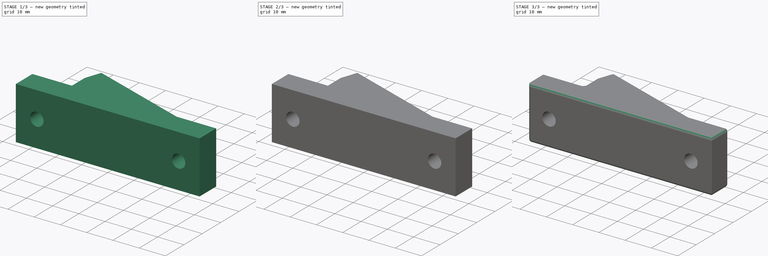
[diagram: build sequence overview — one tinted view per stage of 3, left to right]
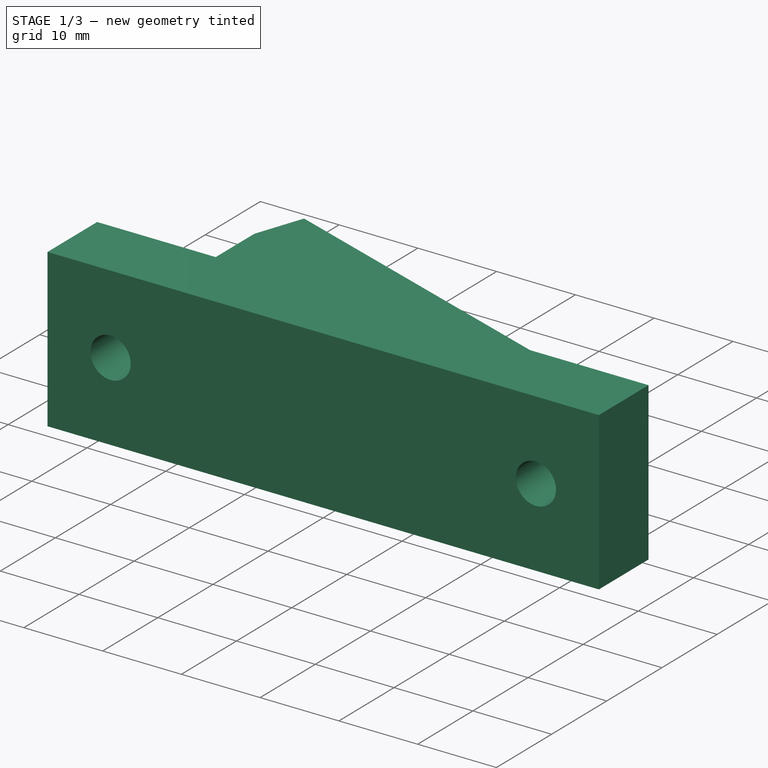
[diagram: stage 1 of 3 — iso view after this stage's code; geometry added in this stage tinted green]
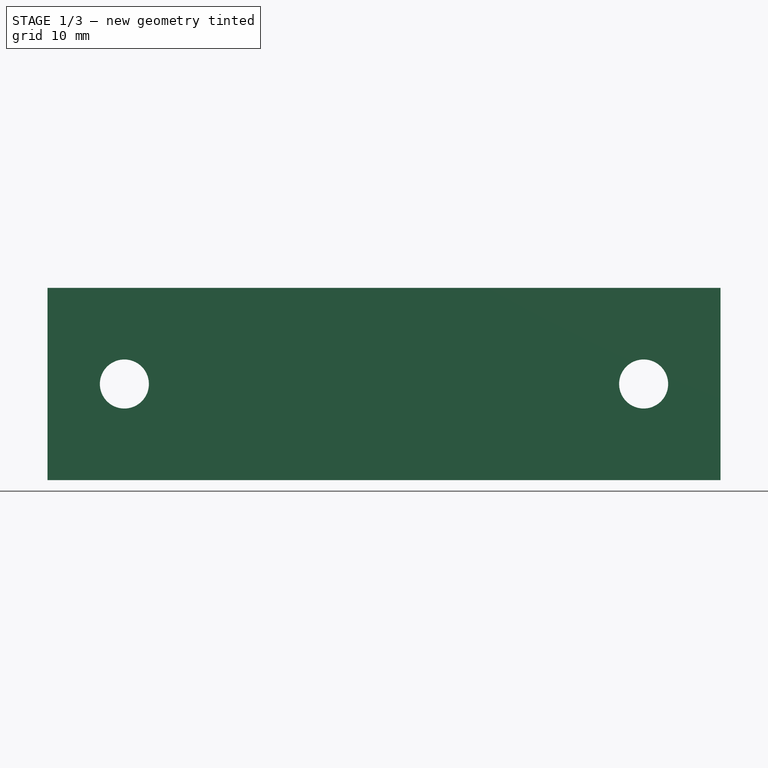
[diagram: stage 1 of 3 — front view after this stage's code; geometry added in this stage tinted green]
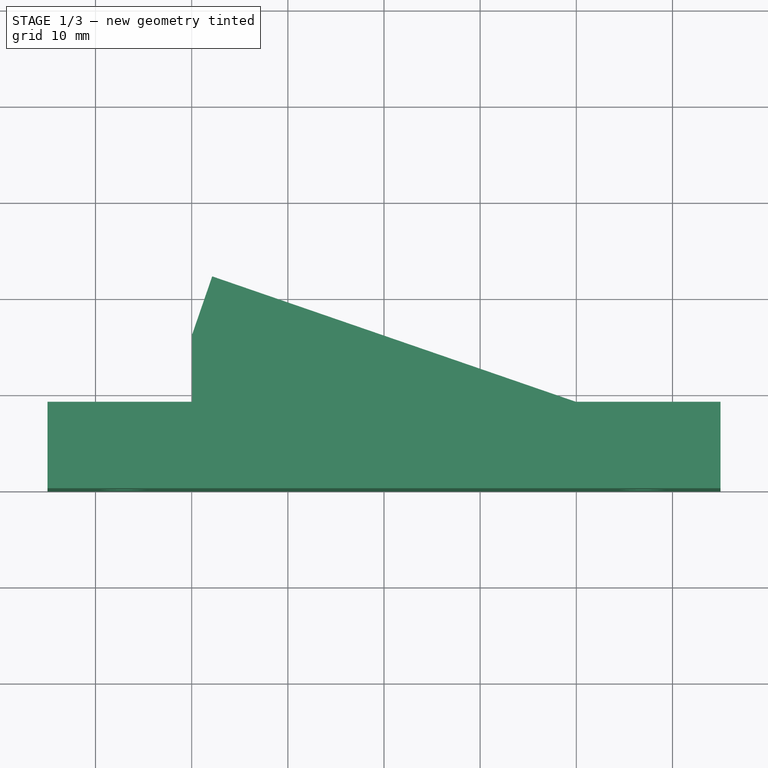
[diagram: stage 1 of 3 — top view after this stage's code; geometry added in this stage tinted green]
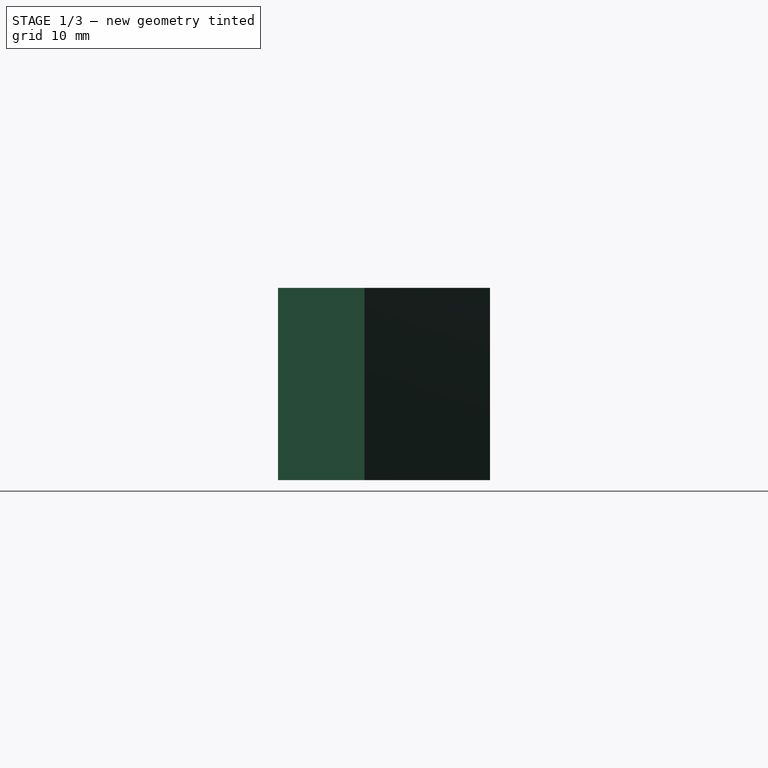
[diagram: stage 1 of 3 — right view after this stage's code; geometry added in this stage tinted green]
FCSTD DOCUMENT  (FreeCAD 0.19R)
Label: spool_holder
License: All rights reserved
LicenseURL: http://en.wikipedia.org/wiki/All_rights_reserved
objects: Sketcher::SketchObject×5, PartDesign::Pocket×4, PartDesign::Pad×1, PartDesign::Fillet×1, PartDesign::Body×1
note: 18 computed .brp shape members not serialized (recipe doc carries the construction recipe); baked Part::Feature solids carry a one-line shape summary decoded from their .brp

FEATURE [Sketcher::SketchObject] Sketch
  FullyConstrained = false
  MapMode = 5
  Support = -> [XY_Plane]
  sketch-geometry (8):
    g0: LineSegment StartX=-35 StartY=0 StartZ=0 EndX=-35 EndY=9 EndZ=0
    g1: LineSegment StartX=35 StartY=0 StartZ=0 EndX=35 EndY=9 EndZ=0
    g2: LineSegment StartX=-19.9491 StartY=9 StartZ=0 EndX=-19.9491 EndY=16 EndZ=0
    g3: LineSegment StartX=35 StartY=9 StartZ=0 EndX=19.9491 EndY=9 EndZ=0
    g4: LineSegment StartX=-19.9491 StartY=16 StartZ=0 EndX=-17.8645 EndY=22.0434 EndZ=0
    g5: LineSegment StartX=-17.8645 StartY=22.0434 StartZ=0 EndX=19.9491 EndY=9 EndZ=0
    g6: LineSegment StartX=-19.9491 StartY=9 StartZ=0 EndX=-35 EndY=9 EndZ=0
    g7: LineSegment StartX=-35 StartY=0 StartZ=0 EndX=35 EndY=0 EndZ=0
  constraints (21):
    c: PointOnObject(g1,g-1)
    c: PointOnObject(g0,g-1)
    c: DistanceX(g-1,g1) = 35
    c: Vertical(g0)
    c: Vertical(g1)
    c: DistanceY(g1,g1) = 9
    c: DistanceY(g0,g0) = 9
    c: Vertical(g2)
    c: Coincident(g3,g1)
    c: Horizontal(g3)
    c: DistanceY(g0,g2) = 16
    c: Coincident(g4,g2)
    c: Coincident(g5,g4)
    c: Coincident(g5,g3)
    c: Perpendicular(g5,g4)
    c: Distance(g5) = 40
    c: Symmetric(g2,g3,g-2)
    c: Coincident(g6,g2)
    c: Coincident(g6,g0)
    c: Coincident(g7,g0)
    c: Coincident(g7,g1)
FEATURE [PartDesign::Pad] Pad
  Direction = (1,1,1)
  Length = 20
  Length2 = 100
  Profile = -> Sketch
  Type = 0
FEATURE [Sketcher::SketchObject] Sketch001
  ExternalGeometry = -> [Pad]
  FullyConstrained = true
  MapMode = 5
  Placement = pos=(0,0,0) rot=(1,0,0;1.5708rad)
  Support = -> [Pad]
  sketch-geometry (2):
    g0: Circle CenterX=-27 CenterY=10 CenterZ=0 NormalX=0 NormalY=0 NormalZ=1 AngleXU=0 Radius=2.55
    g1: Circle CenterX=27 CenterY=10 CenterZ=0 NormalX=0 NormalY=0 NormalZ=1 AngleXU=0 Radius=2.55
  constraints (5):
    c: Diameter(g0) = 5.1
    c: Equal(g0,g1)
    c: Symmetric(g0,g1,g-2)
    c: DistanceY(g-1,g1) = 10
    c: DistanceX(g-3,g0) = 8
FEATURE [PartDesign::Pocket] Pocket
  BaseFeature = -> Pad
  Length = 5
  Length2 = 100
  Profile = -> Sketch001
  Type = 1
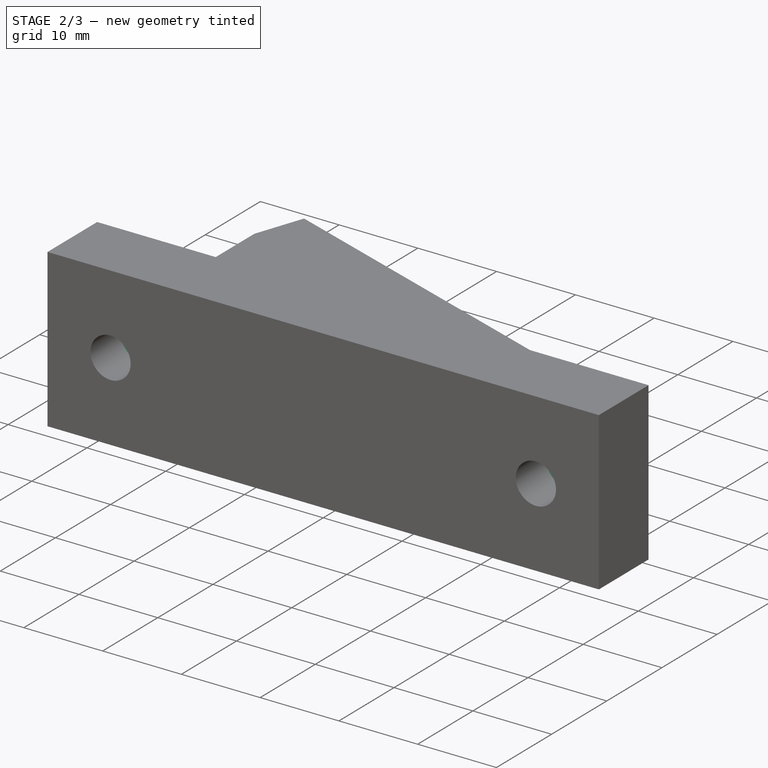
[diagram: stage 2 of 3 — iso view after this stage's code; geometry added in this stage tinted green]
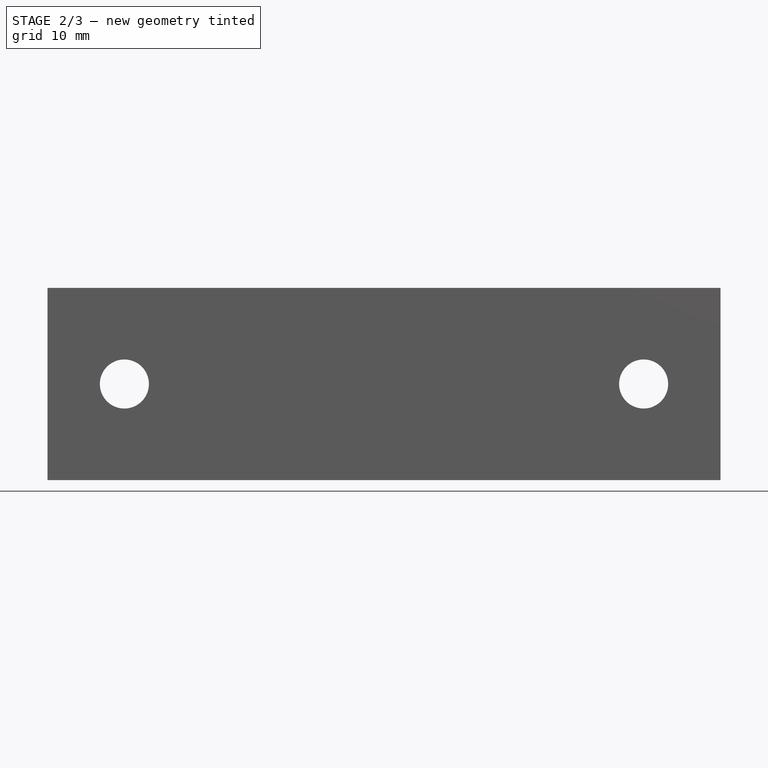
[diagram: stage 2 of 3 — front view after this stage's code; geometry added in this stage tinted green]
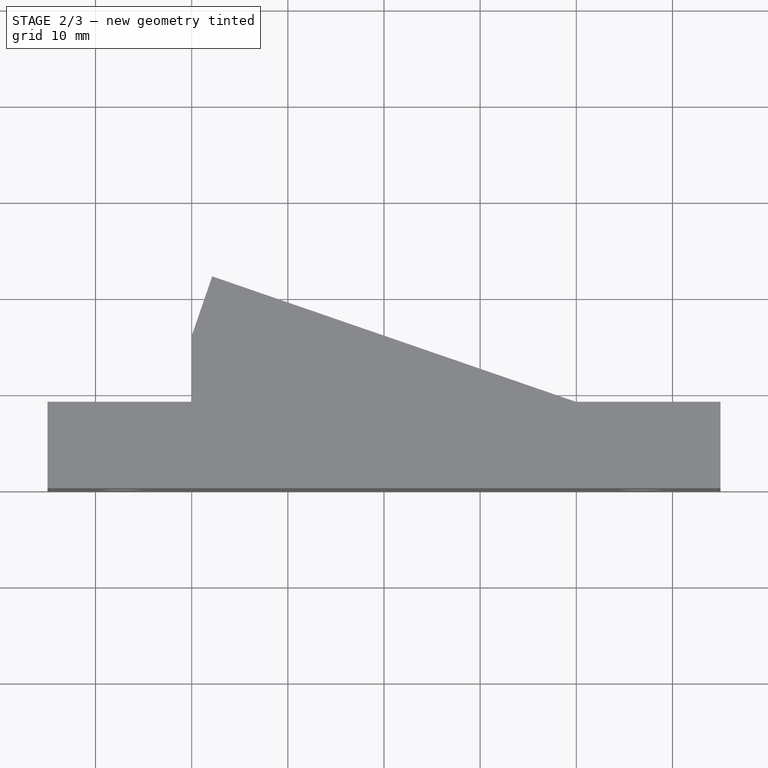
[diagram: stage 2 of 3 — top view after this stage's code; geometry added in this stage tinted green]
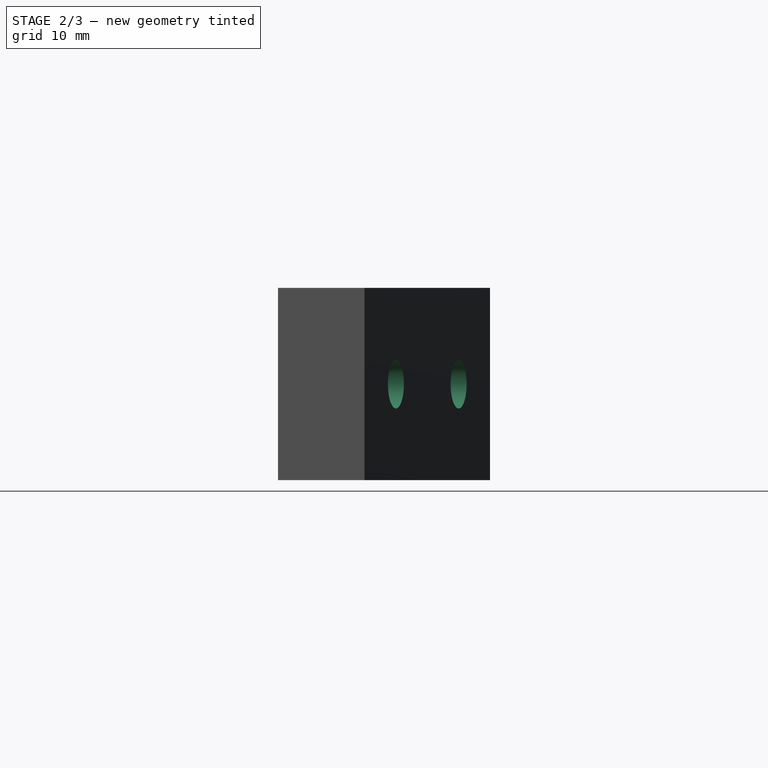
[diagram: stage 2 of 3 — right view after this stage's code; geometry added in this stage tinted green]
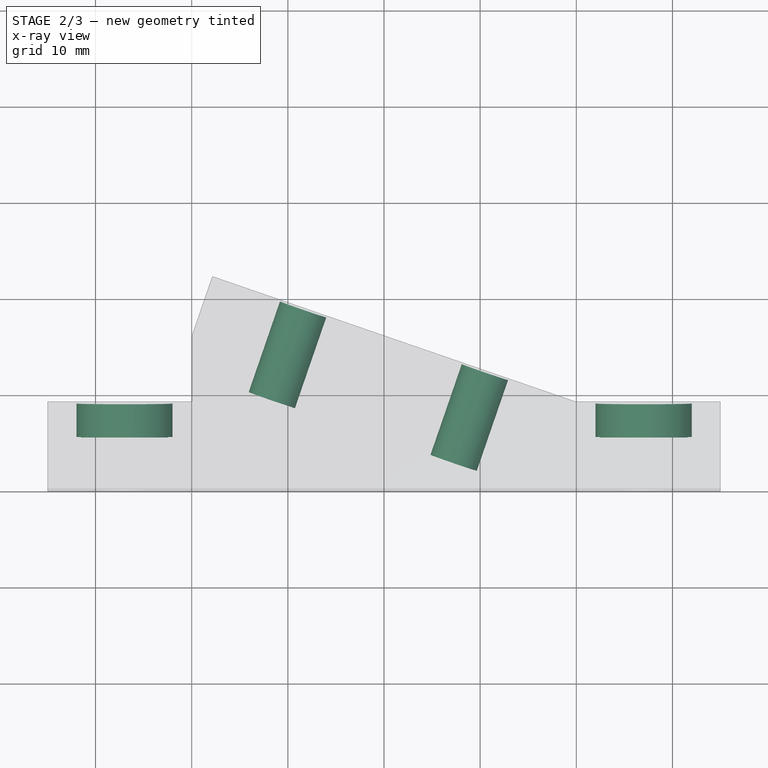
[diagram: stage 2 of 3 — x-ray composite at the top view; earlier geometry ghosted, this stage's added geometry solid]
FEATURE [Sketcher::SketchObject] Sketch002
  ExternalGeometry = -> [Pocket]
  FullyConstrained = true
  MapMode = 5
  Placement = pos=(4.89557,14.1926,0) rot=(0.117704,0.702192,0.702192;2.90726rad)
  Support = -> [Pocket]
  sketch-geometry (2):
    g0: Circle CenterX=-5.92394 CenterY=10 CenterZ=0 NormalX=0 NormalY=0 NormalZ=1 AngleXU=0 Radius=2.55
    g1: Circle CenterX=14.0761 CenterY=10 CenterZ=0 NormalX=0 NormalY=0 NormalZ=1 AngleXU=0 Radius=2.55
  constraints (6):
    c: Diameter(g0) = 5.1
    c: Equal(g0,g1)
    c: DistanceX(g1,g-4) = 10
    c: DistanceX(g0,g1) = 20
    c: DistanceY(g-1,g1) = 10
    c: DistanceY(g-1,g0) = 10
FEATURE [PartDesign::Pocket] Pocket001
  BaseFeature = -> Pocket
  Length = 10
  Length2 = 100
  Profile = -> Sketch002
  Type = 0
FEATURE [Sketcher::SketchObject] Sketch003
  ExternalGeometry = -> [Pocket001]
  FullyConstrained = true
  MapMode = 5
  Placement = pos=(0,9,0) rot=(0,0.707107,0.707107;3.14159rad)
  Support = -> [Pocket001]
  sketch-geometry (2):
    g0: Circle CenterX=-27 CenterY=10 CenterZ=0 NormalX=0 NormalY=0 NormalZ=1 AngleXU=0 Radius=5
    g1: Circle CenterX=27 CenterY=10 CenterZ=0 NormalX=0 NormalY=0 NormalZ=1 AngleXU=0 Radius=5
  constraints (4):
    c: Coincident(g0,g-3)
    c: Coincident(g1,g-4)
    c: Diameter(g0) = 10
    c: Equal(g0,g1)
FEATURE [PartDesign::Pocket] Pocket002
  BaseFeature = -> Pocket001
  Length = 3.5
  Length2 = 100
  Profile = -> Sketch003
  Type = 0
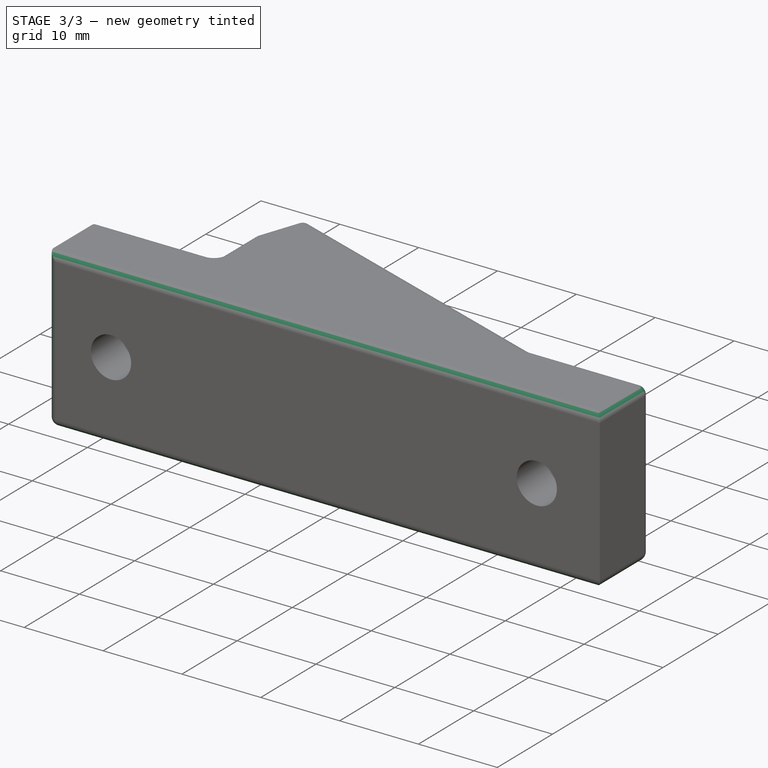
[diagram: stage 3 of 3 — iso view after this stage's code; geometry added in this stage tinted green]
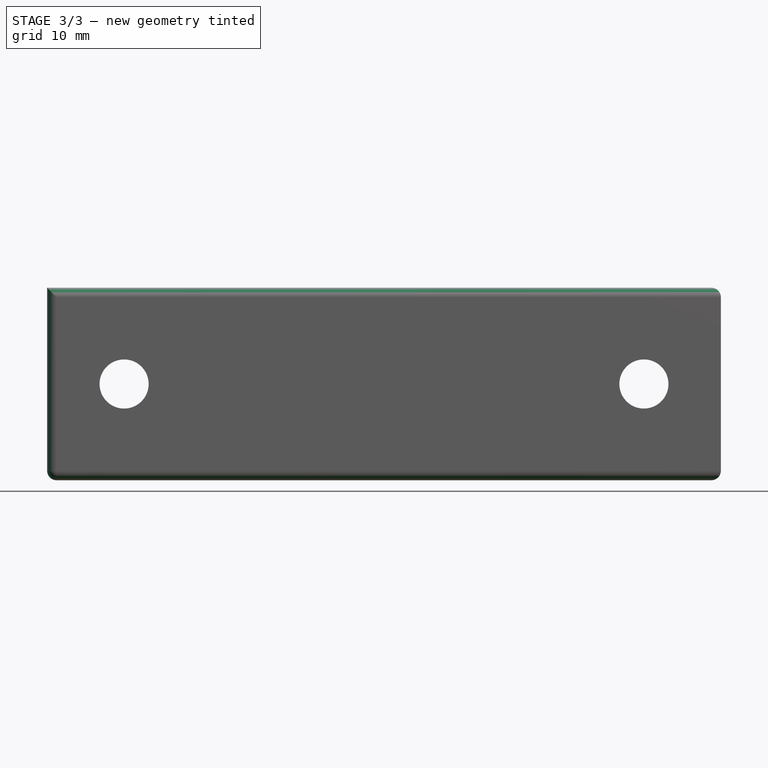
[diagram: stage 3 of 3 — front view after this stage's code; geometry added in this stage tinted green]
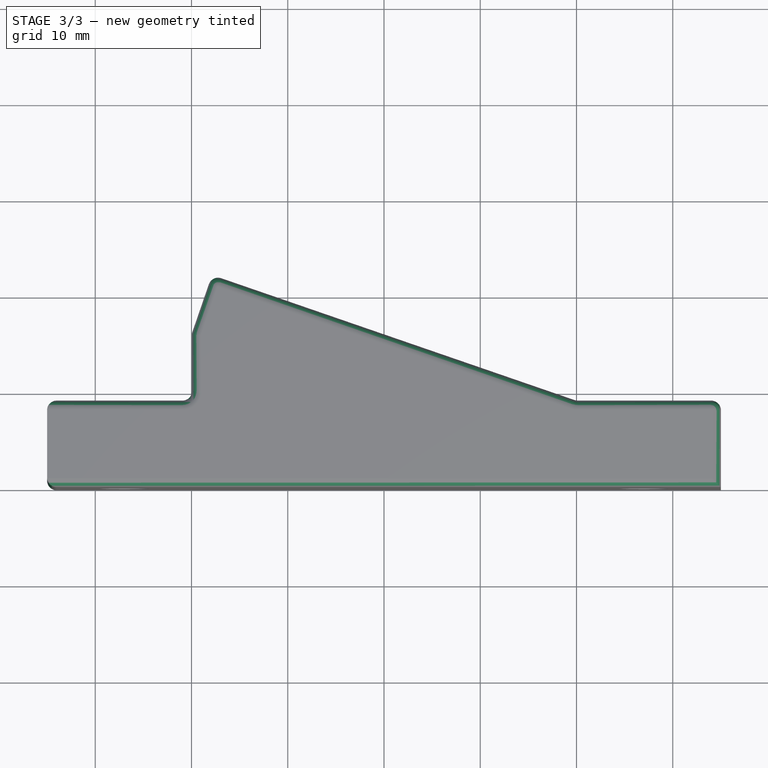
[diagram: stage 3 of 3 — top view after this stage's code; geometry added in this stage tinted green]
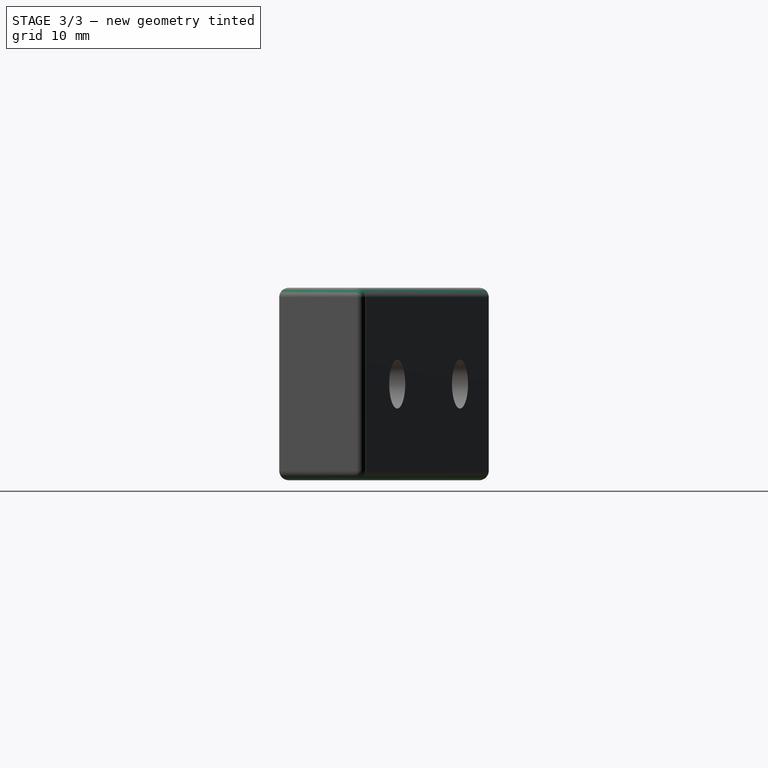
[diagram: stage 3 of 3 — right view after this stage's code; geometry added in this stage tinted green]
FEATURE [Sketcher::SketchObject] Sketch004
  ExternalGeometry = -> [Pocket002]
  FullyConstrained = true
  MapMode = 5
  Placement = pos=(0,0,0) rot=(1,0,0;3.14159rad)
  Support = -> [Pocket002]
  sketch-geometry (14):
    g0: LineSegment StartX=-14.9184 StartY=-13.4109 StartZ=0 EndX=-6.59942 EndY=-10.5413 EndZ=0
    g1: LineSegment StartX=-6.59942 StartY=-10.5413 StartZ=0 EndX=-5.22986 EndY=-14.5118 EndZ=0
    g2: LineSegment StartX=-5.22986 StartY=-14.5118 StartZ=0 EndX=-13.5489 EndY=-17.3813 EndZ=0
    g3: LineSegment StartX=-13.5489 StartY=-17.3813 StartZ=0 EndX=-14.9184 EndY=-13.4109 EndZ=0
    g4: LineSegment StartX=3.9884 StartY=-6.88917 StartZ=0 EndX=5.35795 EndY=-10.8596 EndZ=0
    g5: LineSegment StartX=5.35795 StartY=-10.8596 StartZ=0 EndX=13.677 EndY=-7.99005 EndZ=0
    g6: LineSegment StartX=13.677 StartY=-7.99005 StartZ=0 EndX=12.3074 EndY=-4.01962 EndZ=0
    g7: LineSegment StartX=12.3074 StartY=-4.01962 StartZ=0 EndX=3.9884 EndY=-6.88917 EndZ=0
    g8: LineSegment StartX=-13.5489 StartY=-17.3813 StartZ=0 EndX=-9.38936 EndY=-15.9465 EndZ=0
    g9: LineSegment StartX=5.35795 StartY=-10.8596 StartZ=0 EndX=9.51745 EndY=-9.42483 EndZ=0
    g10: LineSegment StartX=-17.8645 StartY=-22.0434 StartZ=0 EndX=-8.4111 EndY=-18.7825 EndZ=0
    g11: LineSegment StartX=-8.4111 StartY=-18.7825 StartZ=0 EndX=10.4957 EndY=-12.2608 EndZ=0
    g12: LineSegment StartX=-9.38936 StartY=-15.9465 StartZ=0 EndX=-8.4111 EndY=-18.7825 EndZ=0
    g13: LineSegment StartX=9.51745 StartY=-9.42483 StartZ=0 EndX=10.4957 EndY=-12.2608 EndZ=0
  constraints (40):
    c: Coincident(g1,g0)
    c: Coincident(g3,g2)
    c: Coincident(g3,g0)
    c: Coincident(g5,g4)
    c: Coincident(g7,g4)
    c: Parallel(g7,g5)
    c: Parallel(g0,g2)
    c: Parallel(g3,g1)
    c: Parallel(g4,g6)
    c: Parallel(g2,g-3)
    c: Parallel(g5,g-3)
    c: Coincident(g6,g5)
    c: Coincident(g7,g6)
    c: Coincident(g1,g2)
    c: Perpendicular(g2,g1)
    c: Perpendicular(g5,g4)
    c: Distance(g0) = 8.8
    c: Distance(g3) = 4.2
    c: Distance(g4) = 4.2
    c: Distance(g7) = 8.8
    c: Distance(g1,g5) = 20
    c: Coincident(g8,g2)
    c: PointOnObject(g8,g2)
    c: Coincident(g9,g4)
    c: PointOnObject(g9,g5)
    c: Coincident(g10,g-3)
    c: PointOnObject(g10,g-3)
    c: Coincident(g11,g10)
    c: PointOnObject(g11,g-3)
    c: Distance(g11) = 20
    c: Distance(g10) = 10
    c: Distance(g8,g10) = 3
    c: Distance(g9,g4) = 4.4
    c: Distance(g9,g11) = 3
    c: Coincident(g12,g8)
    c: Coincident(g12,g10)
    c: Coincident(g13,g9)
    c: Coincident(g13,g11)
    c: Perpendicular(g11,g13)
    c: Perpendicular(g10,g12)
FEATURE [PartDesign::Pocket] Pocket003
  BaseFeature = -> Pocket002
  Length = 16.2
  Length2 = 100
  Profile = -> Sketch004
  Type = 0
FEATURE [PartDesign::Fillet] Fillet
  Base = -> Pocket003 [Edge5,Edge1,Edge3,Edge2,Edge11,Edge18,Edge16,Edge14,Edge17,Edge37,Edge15,Edge32,Edge42,Edge28,Edge27,Edge12,Edge6,Edge30,Edge31,Edge29,Edge40,Edge10,Edge41,Edge13]
  BaseFeature = -> Pocket003
  Radius = 1
  SupportTransform = false
FEATURE [PartDesign::Body] Body
  Group = -> [Sketch,Pad,Sketch001,Pocket,Sketch002,Pocket001,Sketch003,Pocket002,Sketch004,Pocket003,Fillet]
  Origin = -> Origin
  Tip = -> Fillet
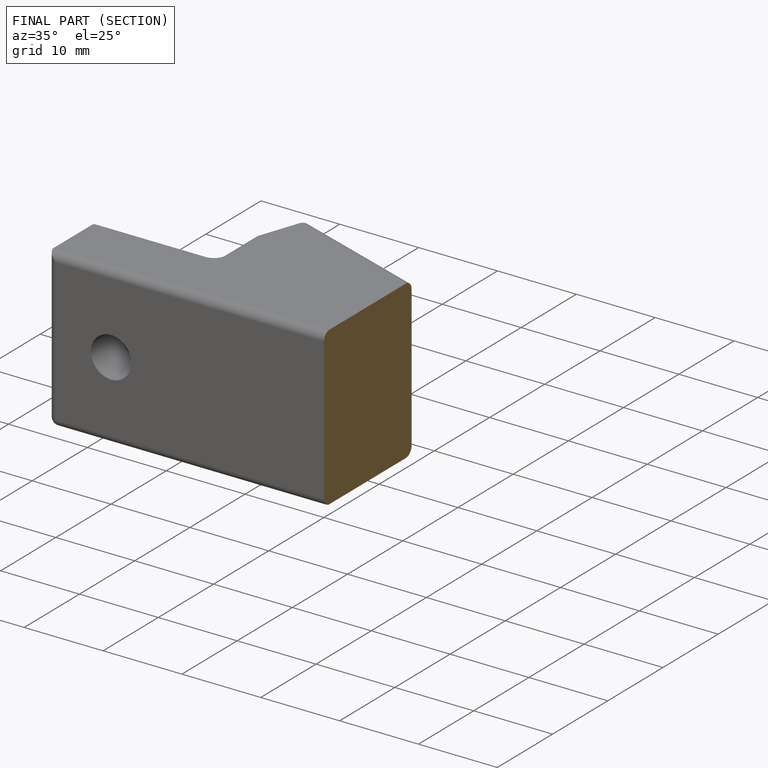
[diagram: finished part — half-section view (interior)]
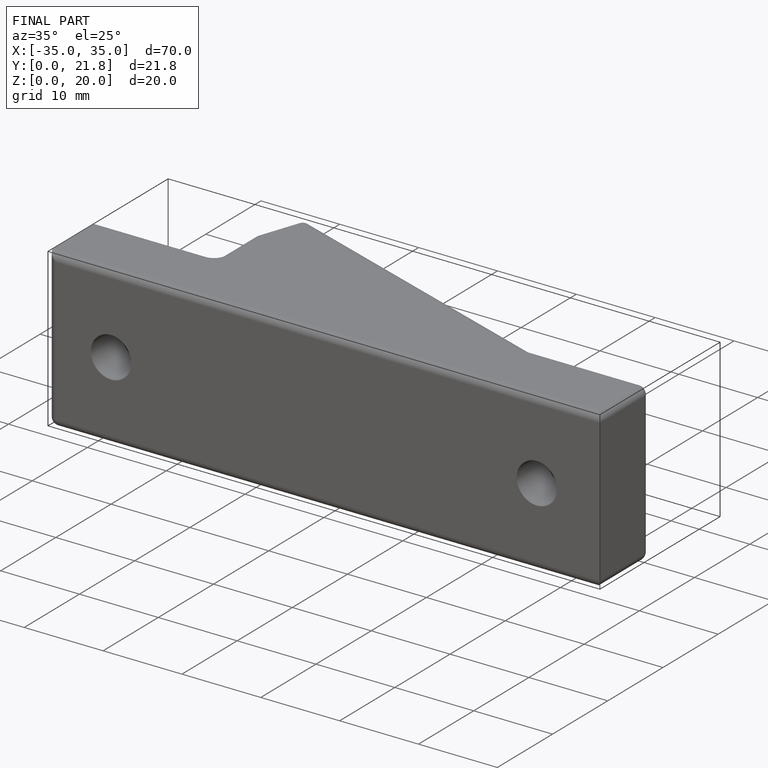
[diagram: finished part — iso view with bounding-box wireframe]
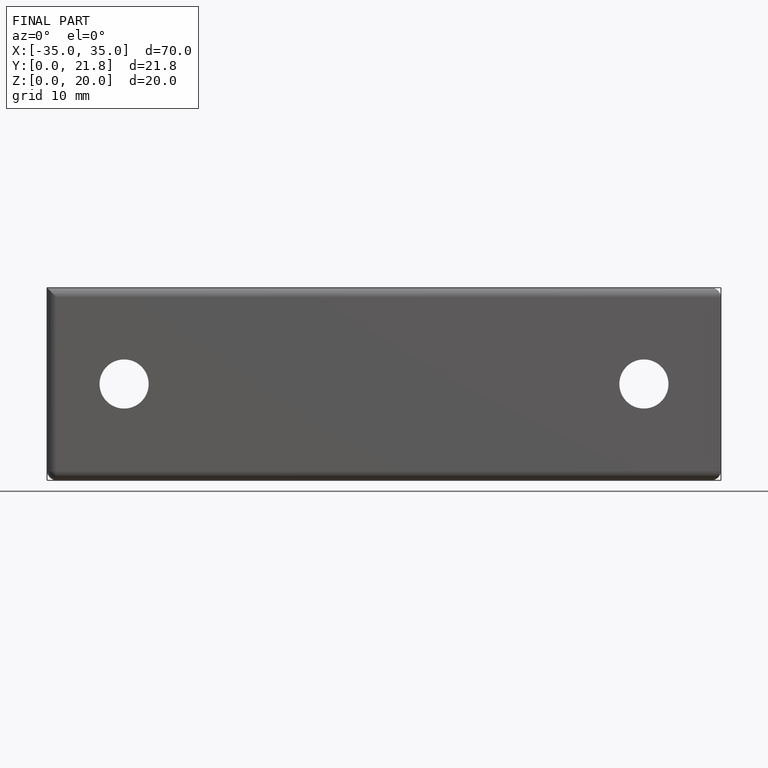
[diagram: finished part — front view with bounding-box wireframe]
